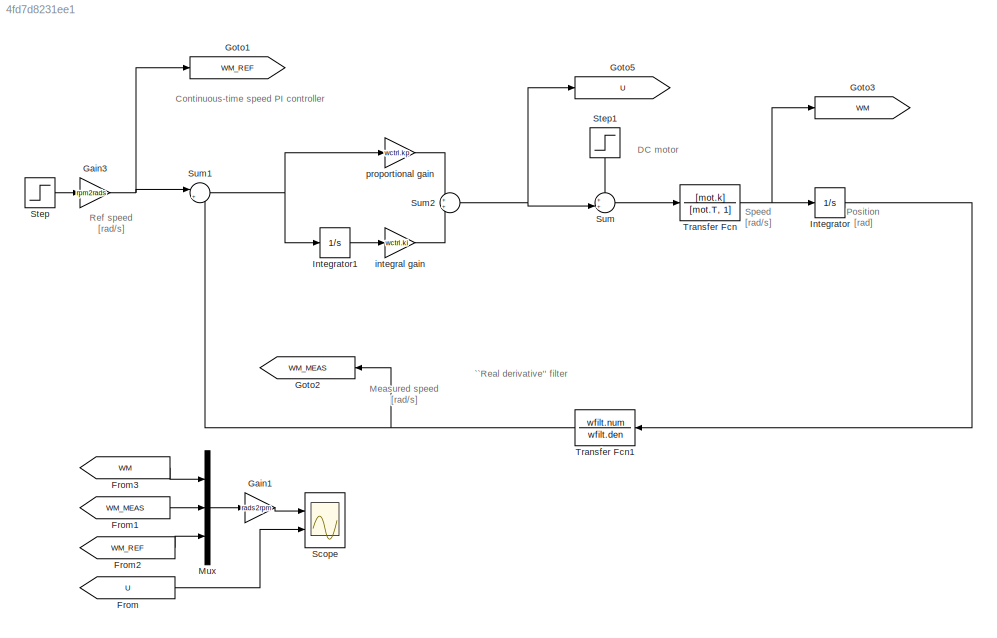
MODEL slx_4fd7d8231ee1
KIND model
CONFIG AbsTol = auto
CONFIG EnableMultiTasking = on
CONFIG FixedStep = auto
CONFIG MaxStep = 0.001
CONFIG MinStep = auto
CONFIG RelTol = 1e-3
CONFIG SampleTimeConstraint = Unconstrained
CONFIG Solver = ode45
CONFIG SolverName = ode45
CONFIG StartTime = 0.0
CONFIG StopTime = 1.0
BLOCK [From] From
  GotoTag = U
BLOCK [From] From1
  GotoTag = WM_MEAS
BLOCK [From] From2
  GotoTag = WM_REF
BLOCK [From] From3
  GotoTag = WM
BLOCK [Gain] Gain1
  Gain = rads2rpm
  OutDataTypeStr = Inherit: Inherit via internal rule
  ParamDataTypeStr = Inherit: Inherit via internal rule
  SaturateOnIntegerOverflow = off
BLOCK [Gain] Gain3
  Gain = rpm2rads
  OutDataTypeStr = Inherit: Inherit via internal rule
  ParamDataTypeStr = Inherit: Inherit via internal rule
  SaturateOnIntegerOverflow = off
BLOCK [Goto] Goto1
  GotoTag = WM_REF
BLOCK [Goto] Goto2
  GotoTag = WM_MEAS
BLOCK [Goto] Goto3
  GotoTag = WM
BLOCK [Goto] Goto5
  GotoTag = U
BLOCK [Integrator] Integrator
  Ports = [1, 1]
BLOCK [Integrator] Integrator1
  Ports = [1, 1]
BLOCK [Mux] Mux
  DisplayOption = bar
  Inputs = 3
  Ports = [3, 1]
BLOCK [Scope] Scope
  Floating = off
  NumInputPorts = 2
  Ports = [2]
  ScopeSpecificationString = Simulink.scopes.TimeScopeBlockCfg('CurrentConfiguration', extmgr.ConfigurationSet(extmgr.Configuration('Core','General UI',true),extmgr.Configuration('Core','Source UI',true),extmgr.Configuration('Sources','WiredSimulink',true,'DataLogging',true,'DataLoggingVariableName','simres1','DataLoggingSaveFormat','StructureWithTime','DataLoggingDecimation','1','DataLoggingDecimateData',true),extmgr.Configu...<+2292ch>
BLOCK [Step] Step
  After = wref.A
  SampleTime = 0
  Time = wref.t0
BLOCK [Step] Step1
  After = dist.A
  SampleTime = 0
  Time = dist.t0
BLOCK [Sum] Sum
  IconShape = round
  InputSameDT = off
  Inputs = ++|
  OutDataTypeStr = Inherit: Inherit via internal rule
  Ports = [2, 1]
  SaturateOnIntegerOverflow = off
BLOCK [Sum] Sum1
  IconShape = round
  InputSameDT = off
  Inputs = |+-
  OutDataTypeStr = Inherit: Inherit via internal rule
  Ports = [2, 1]
  SaturateOnIntegerOverflow = off
BLOCK [Sum] Sum2
  IconShape = round
  InputSameDT = off
  OutDataTypeStr = Inherit: Inherit via internal rule
  Ports = [2, 1]
  SaturateOnIntegerOverflow = off
BLOCK [TransferFcn] Transfer Fcn
  Denominator = [mot.T, 1]
  Numerator = [mot.k]
BLOCK [TransferFcn] Transfer Fcn1
  Denominator = wfilt.den
  Numerator = wfilt.num
BLOCK [Gain] integral gain
  Gain = wctrl.ki
  OutDataTypeStr = Inherit: Inherit via internal rule
  ParamDataTypeStr = Inherit: Inherit via internal rule
  SaturateOnIntegerOverflow = off
BLOCK [Gain] proportional gain
  Gain = wctrl.kp
  OutDataTypeStr = Inherit: Inherit via internal rule
  ParamDataTypeStr = Inherit: Inherit via internal rule
  SaturateOnIntegerOverflow = off
ANNOTATION (root): Measured speed [rad/s]
ANNOTATION (root): Position [rad]
ANNOTATION (root): Ref speed [rad/s]
ANNOTATION (root): Speed [rad/s]
ANNOTATION (root): Continuous-time speed PI controller
ANNOTATION (root): DC motor
ANNOTATION (root): ``Real derivative'' filter
LINE From1:1 -> Mux:2
LINE From2:1 -> Mux:3
LINE From3:1 -> Mux:1
LINE From:1 -> Scope:2
LINE Gain1:1 -> Scope:1
NET Gain3:1 -> Goto1:1, Sum1:1
LINE Integrator1:1 -> integral gain:1
LINE Integrator:1 -> Transfer Fcn1:1
LINE Mux:1 -> Gain1:1
LINE Step1:1 -> Sum:1
LINE Step:1 -> Gain3:1
NET Sum1:1 -> Integrator1:1, proportional gain:1
NET Sum2:1 -> Goto5:1, Sum:2
LINE Sum:1 -> Transfer Fcn:1
NET Transfer Fcn1:1 -> Goto2:1, Sum1:2
NET Transfer Fcn:1 -> Goto3:1, Integrator:1
LINE integral gain:1 -> Sum2:2
LINE proportional gain:1 -> Sum2:1
note: NET lines group one-source signal fan-out (src -> all destinations, sorted); 1:1 wires keep LINE
